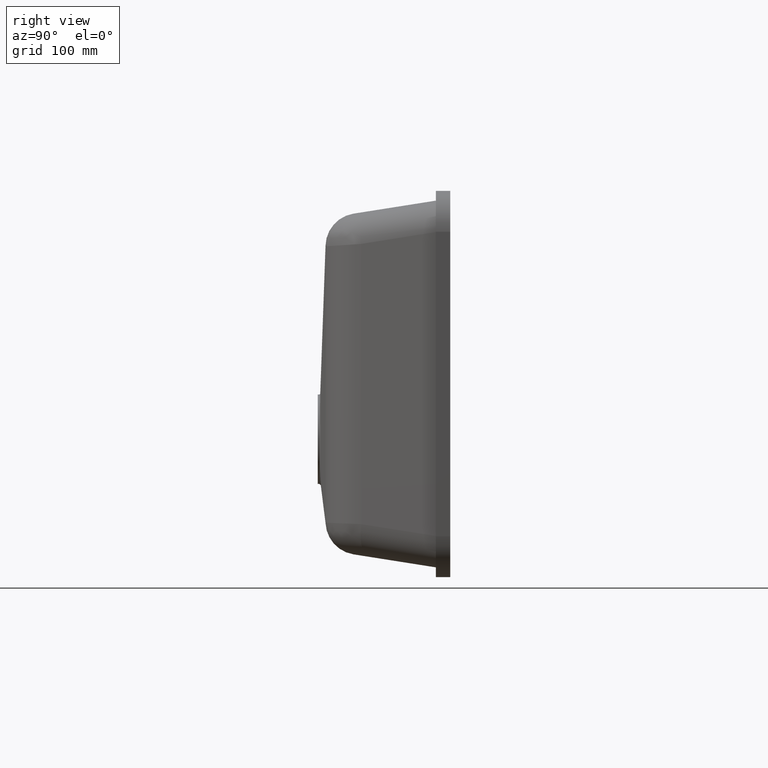
[diagram: clean part render]
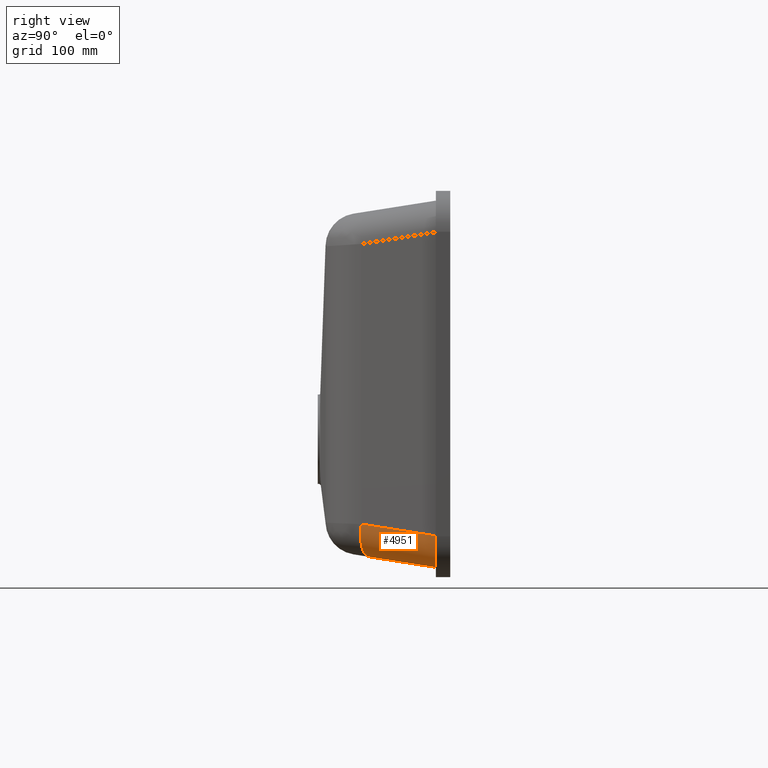
[diagram: same view with one face highlighted and labeled with its STEP entity id]
A machine part, right view. The second image highlights one B-rep face of the part: STEP entity #4951.
In plain terms, the highlighted cylindrical surface (edge-blend (fillet) strip) has radius 30 mm, axis along (-0.384, -0.912, 0.144).
Its self-contained STEP definition (entity closure, byte-faithful):
#87 = EDGE_CURVE ( 'NONE', #4451, #1323, #4384, .T. ) ;
#166 = DIRECTION ( 'NONE',  ( -0.3840122885898559213, -0.9120291854009067167, 0.1440046082211953737 ) ) ;
#195 = FACE_OUTER_BOUND ( 'NONE', #3097, .T. ) ;
#311 =( BOUNDED_CURVE ( )  B_SPLINE_CURVE ( 3, ( #2285, #2792, #5823, #1417 ),
 .UNSPECIFIED., .F., .F. ) 
 B_SPLINE_CURVE_WITH_KNOTS ( ( 4, 4 ),
 ( 2.812052685127132801, 4.322289634029416128 ),
 .UNSPECIFIED. ) 
 CURVE ( )  GEOMETRIC_REPRESENTATION_ITEM ( )  RATIONAL_B_SPLINE_CURVE ( ( 1.000000000000000000, 0.8187935659152689727, 0.8187935659152689727, 1.000000000000000000 ) ) 
 REPRESENTATION_ITEM ( '' )  );
#359 = CARTESIAN_POINT ( 'NONE',  ( 207.9584828659074844, -73.60418820552736463, -156.6012814996580005 ) ) ;
#394 = DIRECTION ( 'NONE',  ( 0.3840122885898558658, 0.9120291854009066057, -0.1440046082211953737 ) ) ;
#965 = VECTOR ( 'NONE', #394, 1000.000000000000114 ) ;
#1019 = CARTESIAN_POINT ( 'NONE',  ( 207.9584828659075981, -68.92531100133709288, -126.9683925397859241 ) ) ;
#1323 = VERTEX_POINT ( 'NONE', #359 ) ;
#1417 = CARTESIAN_POINT ( 'NONE',  ( 233.4760357945507110, -13.00000000000001066, -166.1703638478991252 ) ) ;
#1426 = LINE ( 'NONE', #3373, #965 ) ;
#1786 = CARTESIAN_POINT ( 'NONE',  ( 235.6075441200494822, -80.56702100308103809, -126.9683925397859241 ) ) ;
#1873 = EDGE_CURVE ( 'NONE', #3244, #4451, #311, .T. ) ;
#1947 = VECTOR ( 'NONE', #5348, 1000.000000000000114 ) ;
#2285 = CARTESIAN_POINT ( 'NONE',  ( 264.0568161213469125, -13.00000000000001066, -137.6368695402723858 ) ) ;
#2598 = CIRCLE ( 'NONE', #4427, 30.00000000000000355 ) ;
#2703 = ORIENTED_EDGE ( 'NONE', *, *, #5769, .F. ) ;
#2792 = CARTESIAN_POINT ( 'NONE',  ( 264.0568161213469125, -13.00000000000001243, -154.5542921478521521 ) ) ;
#3091 = CYLINDRICAL_SURFACE ( 'NONE', #4532, 30.00000000000000355 ) ;
#3097 = EDGE_LOOP ( 'NONE', ( #5416, #2703, #4980, #5282 ) ) ;
#3244 = VERTEX_POINT ( 'NONE', #4146 ) ;
#3373 = CARTESIAN_POINT ( 'NONE',  ( 193.4878734929302766, -180.6012387424892438, -111.1735160546162575 ) ) ;
#4076 = DIRECTION ( 'NONE',  ( 0.9216353751380651493, -0.3880570000581330392, 0.000000000000000000 ) ) ;
#4146 = CARTESIAN_POINT ( 'NONE',  ( 264.0568161213469125, -13.00000000000001066, -137.6368695402723858 ) ) ;
#4384 = LINE ( 'NONE', #6329, #1947 ) ;
#4427 = AXIS2_PLACEMENT_3D ( 'NONE', #1019, #4566, #5463 ) ;
#4451 = VERTEX_POINT ( 'NONE', #5007 ) ;
#4532 = AXIS2_PLACEMENT_3D ( 'NONE', #4547, #166, #4076 ) ;
#4547 = CARTESIAN_POINT ( 'NONE',  ( 165.8388122387883357, -168.9595287407452417, -111.1735160546162575 ) ) ;
#4566 = DIRECTION ( 'NONE',  ( 0.3840122885898559213, 0.9120291854009067167, -0.1440046082211953737 ) ) ;
#4604 = VERTEX_POINT ( 'NONE', #1786 ) ;
#4951 = ADVANCED_FACE ( 'NONE', ( #195 ), #3091, .T. ) ;
#4980 = ORIENTED_EDGE ( 'NONE', *, *, #6240, .T. ) ;
#5007 = CARTESIAN_POINT ( 'NONE',  ( 233.4760357945507110, -13.00000000000001066, -166.1703638478991252 ) ) ;
#5282 = ORIENTED_EDGE ( 'NONE', *, *, #87, .F. ) ;
#5348 = DIRECTION ( 'NONE',  ( -0.3840122885898558658, -0.9120291854009066057, 0.1440046082211953737 ) ) ;
#5416 = ORIENTED_EDGE ( 'NONE', *, *, #1873, .F. ) ;
#5463 = DIRECTION ( 'NONE',  ( 0.9216353751380651493, -0.3880570000581330392, 0.000000000000000000 ) ) ;
#5769 = EDGE_CURVE ( 'NONE', #4604, #3244, #1426, .T. ) ;
#5823 = CARTESIAN_POINT ( 'NONE',  ( 251.6072881003606483, -13.00000000000001243, -166.1703638478991820 ) ) ;
#6240 = EDGE_CURVE ( 'NONE', #4604, #1323, #2598, .T. ) ;
#6329 = CARTESIAN_POINT ( 'NONE',  ( 165.8388122387883072, -173.6384059449355561, -140.8064050144883197 ) ) ;